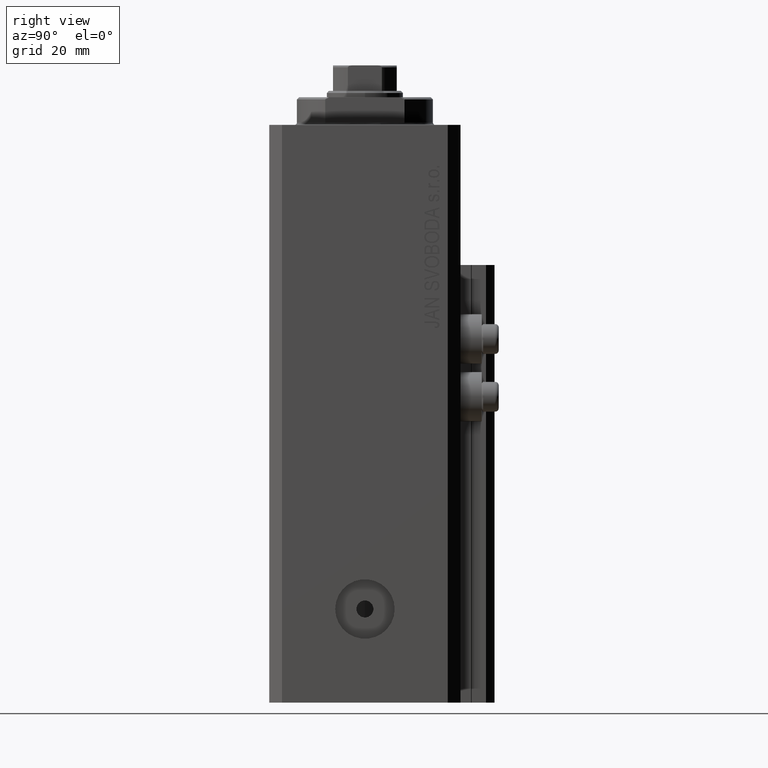
[diagram: clean part render]
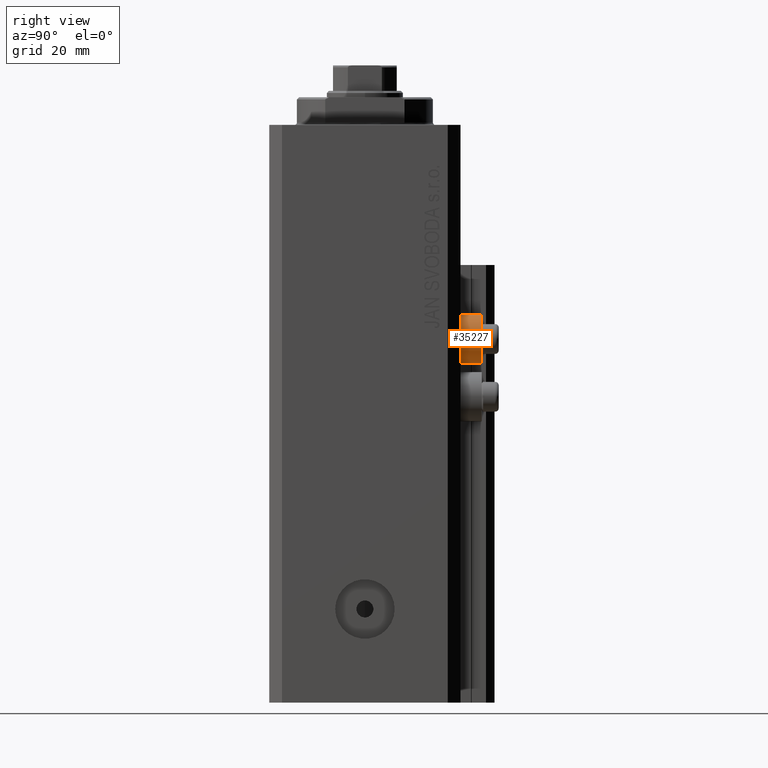
[diagram: same view with one face highlighted and labeled with its STEP entity id]
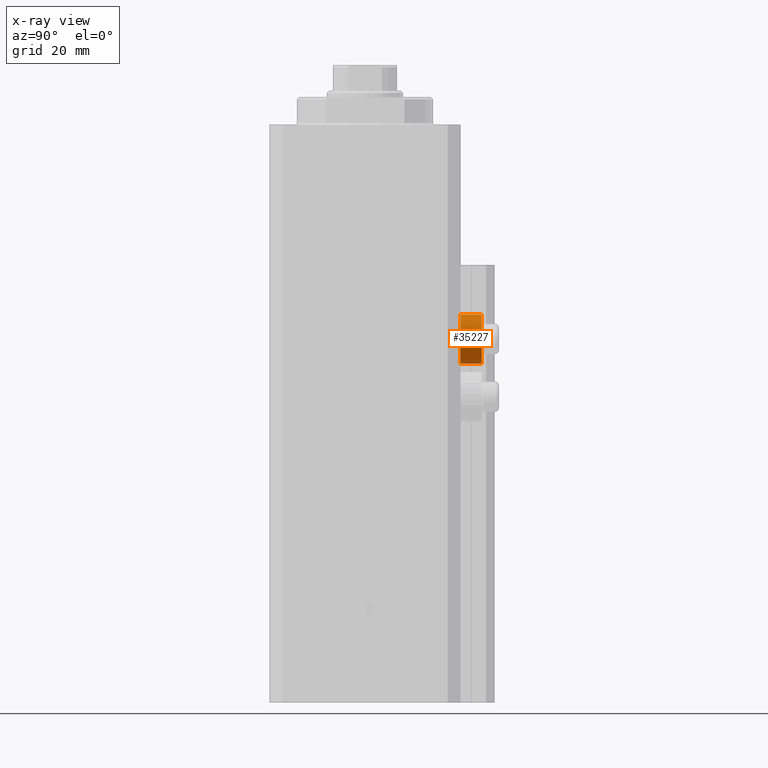
[diagram: x-ray of the same camera — body ghosted, the highlighted face saturated]
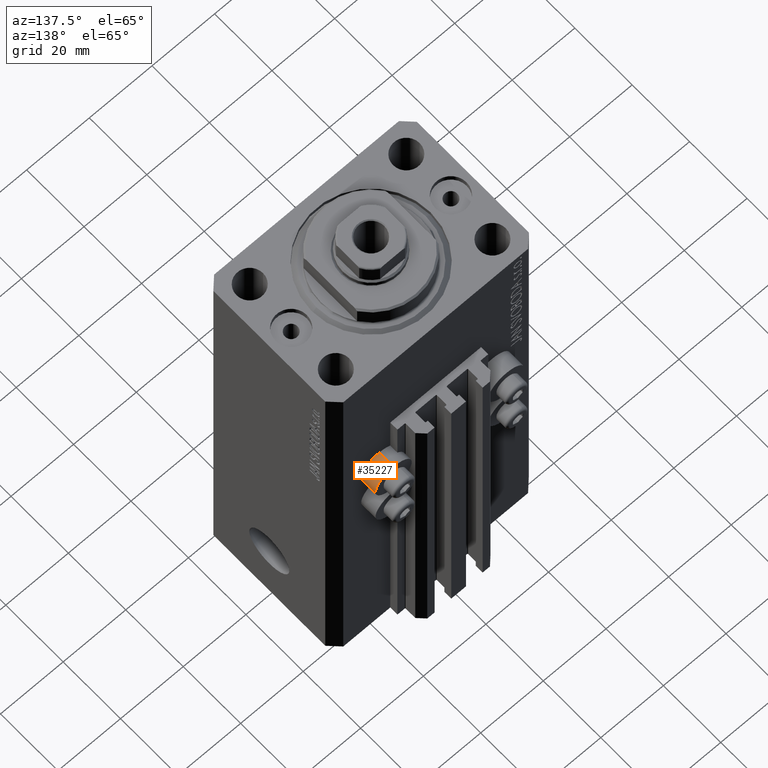
[diagram: same view with one face highlighted and labeled with its STEP entity id]
A machine part, right view. The second image highlights one B-rep face of the part: STEP entity #35227.
The next image is the same camera in x-ray: the body ghosted, the highlighted face saturated — about 0% of this face is hidden behind the body in this view.
A second angle (auxiliary view) of the same face is appended — the face is thin or edge-on in the first view.
In plain terms, the highlighted cylindrical surface (edge-blend (fillet) strip) has radius 5.8 mm, axis along (0, 1, 0).
Its self-contained STEP definition (entity closure, byte-faithful):
#521 = DIRECTION ( 'NONE',  ( 0.000000000000000000, 0.000000000000000000, 1.000000000000000000 ) ) ;
#2890 = CIRCLE ( 'NONE', #29555, 5.799999999999999822 ) ;
#3781 = LINE ( 'NONE', #11881, #26488 ) ;
#8305 = VECTOR ( 'NONE', #9022, 1000.000000000000000 ) ;
#9022 = DIRECTION ( 'NONE',  ( 0.000000000000000000, 1.000000000000000000, 0.000000000000000000 ) ) ;
#9820 = EDGE_CURVE ( 'NONE', #28901, #44985, #28237, .T. ) ;
#10273 = ORIENTED_EDGE ( 'NONE', *, *, #14581, .T. ) ;
#11881 = CARTESIAN_POINT ( 'NONE',  ( 18.00000000000000355, 27.49999999996051514, -44.60000000000000142 ) ) ;
#12142 = LINE ( 'NONE', #16165, #8305 ) ;
#12527 = CARTESIAN_POINT ( 'NONE',  ( 18.00000000000000355, 27.49999999996051514, -50.39999999999999858 ) ) ;
#12627 = AXIS2_PLACEMENT_3D ( 'NONE', #36326, #22216, #521 ) ;
#13464 = ORIENTED_EDGE ( 'NONE', *, *, #41098, .F. ) ;
#13864 = VERTEX_POINT ( 'NONE', #34886 ) ;
#14468 = DIRECTION ( 'NONE',  ( -0.000000000000000000, -1.000000000000000000, -0.000000000000000000 ) ) ;
#14581 = EDGE_CURVE ( 'NONE', #28901, #13864, #12142, .T. ) ;
#14752 = DIRECTION ( 'NONE',  ( 0.000000000000000000, 1.000000000000000000, 0.000000000000000000 ) ) ;
#16165 = CARTESIAN_POINT ( 'NONE',  ( 18.00000000000000355, 27.49999999996051514, -56.20000000000000284 ) ) ;
#17921 = EDGE_CURVE ( 'NONE', #13864, #23602, #2890, .T. ) ;
#17944 = CYLINDRICAL_SURFACE ( 'NONE', #12627, 5.799999999999999822 ) ;
#20367 = DIRECTION ( 'NONE',  ( 0.000000000000000000, 0.000000000000000000, 1.000000000000000000 ) ) ;
#22216 = DIRECTION ( 'NONE',  ( 0.000000000000000000, 1.000000000000000000, 0.000000000000000000 ) ) ;
#23602 = VERTEX_POINT ( 'NONE', #46672 ) ;
#23723 = DIRECTION ( 'NONE',  ( 0.000000000000000000, 0.000000000000000000, 1.000000000000000000 ) ) ;
#26488 = VECTOR ( 'NONE', #14752, 1000.000000000000000 ) ;
#26865 = EDGE_LOOP ( 'NONE', ( #33997, #10273, #34292, #13464 ) ) ;
#28041 = CARTESIAN_POINT ( 'NONE',  ( 18.00000000000000355, 22.49999999999951328, -56.20000000000000284 ) ) ;
#28237 = CIRCLE ( 'NONE', #35840, 5.799999999999999822 ) ;
#28901 = VERTEX_POINT ( 'NONE', #28041 ) ;
#29555 = AXIS2_PLACEMENT_3D ( 'NONE', #12527, #30889, #20367 ) ;
#30889 = DIRECTION ( 'NONE',  ( -0.000000000000000000, -1.000000000000000000, -0.000000000000000000 ) ) ;
#32978 = FACE_OUTER_BOUND ( 'NONE', #26865, .T. ) ;
#33997 = ORIENTED_EDGE ( 'NONE', *, *, #9820, .F. ) ;
#34292 = ORIENTED_EDGE ( 'NONE', *, *, #17921, .T. ) ;
#34886 = CARTESIAN_POINT ( 'NONE',  ( 18.00000000000000355, 27.49999999996051514, -56.20000000000000284 ) ) ;
#35227 = ADVANCED_FACE ( 'NONE', ( #32978 ), #17944, .T. ) ;
#35479 = CARTESIAN_POINT ( 'NONE',  ( 18.00000000000000355, 22.49999999999951328, -44.60000000000000142 ) ) ;
#35840 = AXIS2_PLACEMENT_3D ( 'NONE', #40694, #14468, #23723 ) ;
#36326 = CARTESIAN_POINT ( 'NONE',  ( 18.00000000000000355, 27.49999999996051514, -50.39999999999999858 ) ) ;
#40694 = CARTESIAN_POINT ( 'NONE',  ( 18.00000000000000355, 22.49999999999951328, -50.39999999999999858 ) ) ;
#41098 = EDGE_CURVE ( 'NONE', #44985, #23602, #3781, .T. ) ;
#44985 = VERTEX_POINT ( 'NONE', #35479 ) ;
#46672 = CARTESIAN_POINT ( 'NONE',  ( 18.00000000000000355, 27.49999999996051514, -44.60000000000000142 ) ) ;